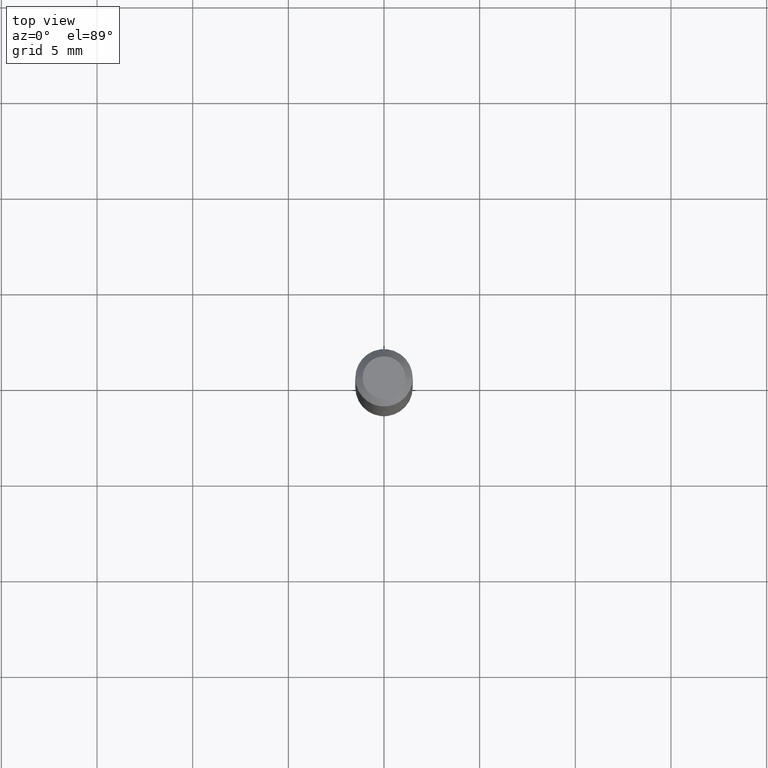
[diagram: clean part render]
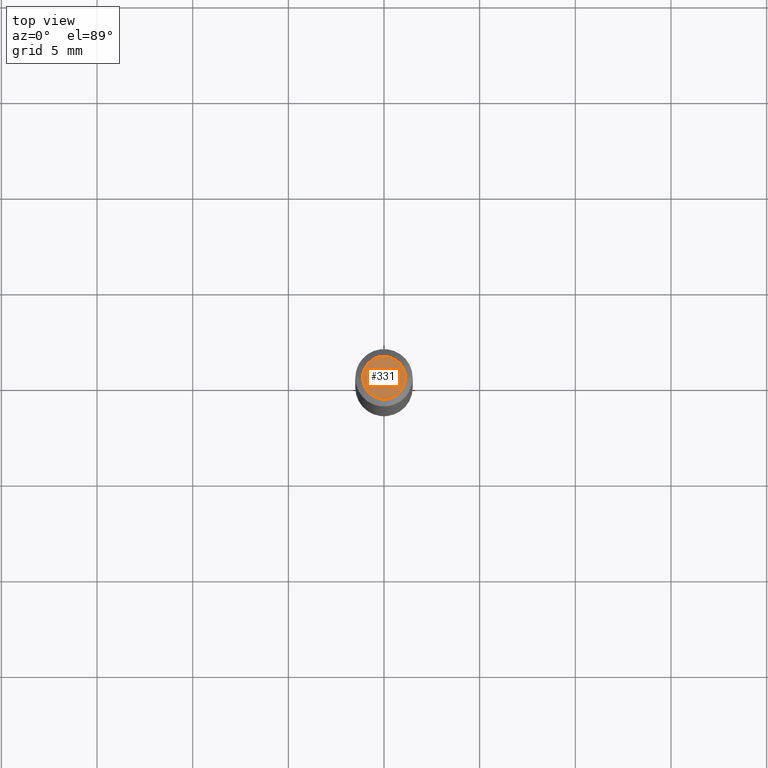
[diagram: same view with one face highlighted and labeled with its STEP entity id]
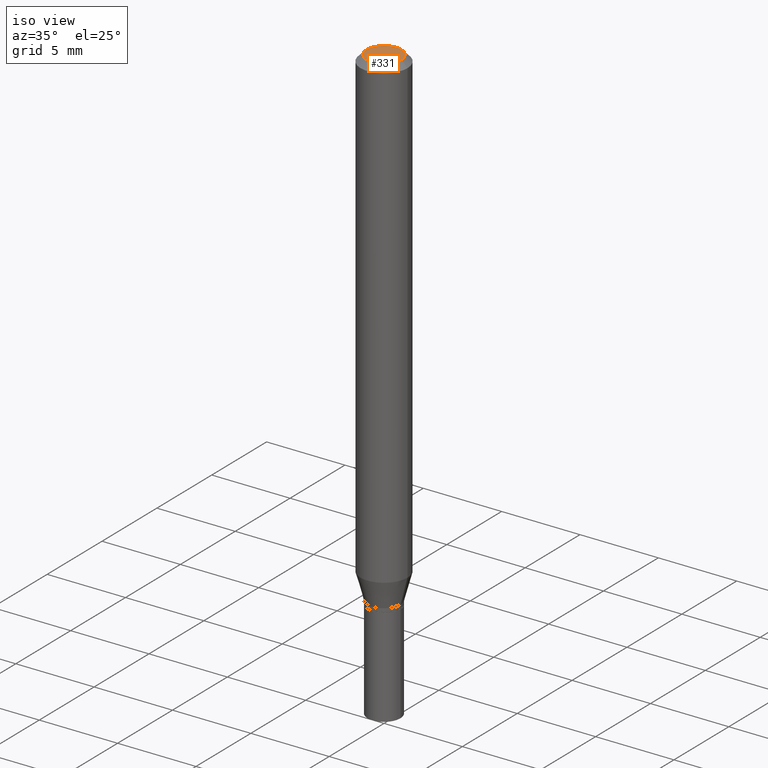
[diagram: same view with one face highlighted and labeled with its STEP entity id]
A machine part, top view. The second image highlights one B-rep face of the part: STEP entity #331.
A second angle (iso view) of the same face is appended — the face is thin or edge-on in the first view.
In plain terms, the highlighted planar face has unit normal (0, -0, -1).
Its self-contained STEP definition (entity closure, byte-faithful):
#16 = EDGE_LOOP ( 'NONE', ( #172, #270 ) ) ;
#48 = CARTESIAN_POINT ( 'NONE',  ( -1.820608976435806183E-45, 2.599347106975407252E-31, 7.444826005676619610E-17 ) ) ;
#49 = FACE_OUTER_BOUND ( 'NONE', #16, .T. ) ;
#52 = VERTEX_POINT ( 'NONE', #454 ) ;
#141 = CARTESIAN_POINT ( 'NONE',  ( -1.820608976435806183E-45, 2.599347106975407252E-31, 7.444826005676619610E-17 ) ) ;
#144 = CIRCLE ( 'NONE', #403, 0.04404999999999999888 ) ;
#158 = DIRECTION ( 'NONE',  ( -2.445468806185136597E-29, 3.491481338843145583E-15, 1.000000000000000000 ) ) ;
#172 = ORIENTED_EDGE ( 'NONE', *, *, #427, .T. ) ;
#190 = CARTESIAN_POINT ( 'NONE',  ( 3.075995059520799729E-16, 0.04404999999999999888, -1.165756229476574492E-16 ) ) ;
#194 = AXIS2_PLACEMENT_3D ( 'NONE', #190, #370, #235 ) ;
#204 = DIRECTION ( 'NONE',  ( -2.445468806185136597E-29, 3.491481338843145583E-15, 1.000000000000000000 ) ) ;
#235 = DIRECTION ( 'NONE',  ( -1.000000000000000000, 6.982962677686265922E-15, -4.876176775795935793E-29 ) ) ;
#270 = ORIENTED_EDGE ( 'NONE', *, *, #328, .T. ) ;
#302 = CARTESIAN_POINT ( 'NONE',  ( -0.04404999999999999888, 3.337856159934035125E-16, 7.444826005676395277E-17 ) ) ;
#305 = DIRECTION ( 'NONE',  ( 1.000000000000000000, -6.982962677686265922E-15, 4.888540261209747396E-29 ) ) ;
#328 = EDGE_CURVE ( 'NONE', #52, #382, #144, .T. ) ;
#331 = ADVANCED_FACE ( 'NONE', ( #49 ), #334, .F. ) ;
#334 = PLANE ( 'NONE',  #194 ) ;
#350 = DIRECTION ( 'NONE',  ( 1.000000000000000000, -6.982962677686265922E-15, 4.888540261209747396E-29 ) ) ;
#370 = DIRECTION ( 'NONE',  ( 2.438088387897960049E-29, -3.491481338843145188E-15, -1.000000000000000000 ) ) ;
#382 = VERTEX_POINT ( 'NONE', #302 ) ;
#403 = AXIS2_PLACEMENT_3D ( 'NONE', #48, #158, #305 ) ;
#427 = EDGE_CURVE ( 'NONE', #382, #52, #466, .T. ) ;
#454 = CARTESIAN_POINT ( 'NONE',  ( 0.04404999999999999888, -3.798447818264459093E-16, 7.444826005676859966E-17 ) ) ;
#456 = AXIS2_PLACEMENT_3D ( 'NONE', #141, #204, #350 ) ;
#466 = CIRCLE ( 'NONE', #456, 0.04404999999999999888 ) ;